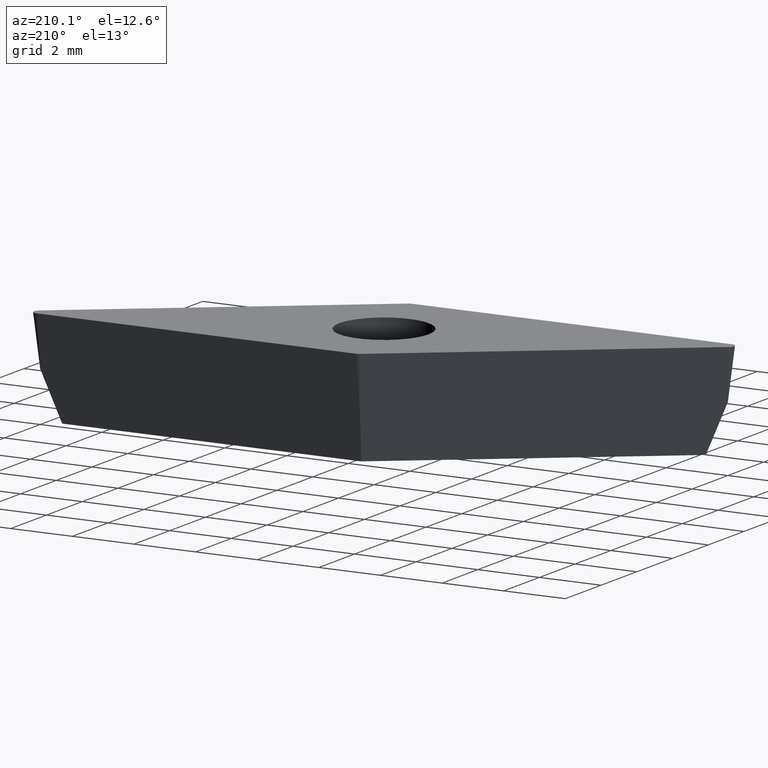
[diagram: clean part render]
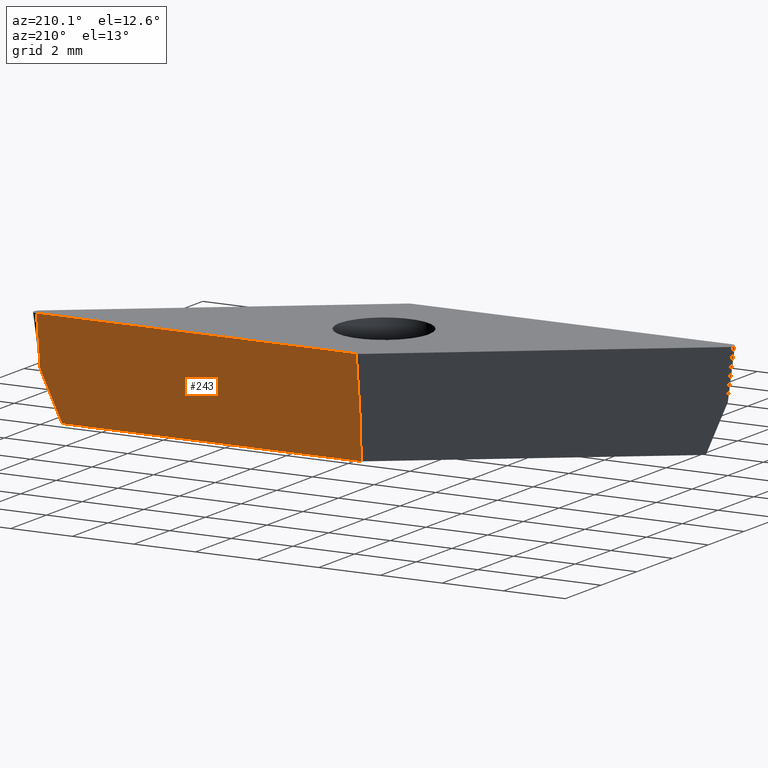
[diagram: same view with one face highlighted and labeled with its STEP entity id]
A machine part, auxiliary view. The second image highlights one B-rep face of the part: STEP entity #243.
In plain terms, the highlighted face is a freeform B-spline surface patch.
Its self-contained STEP definition (entity closure, byte-faithful):
#16 = VECTOR ( 'NONE', #420, 1000.000000000000000 ) ;
#27 = VERTEX_POINT ( 'NONE', #340 ) ;
#43 = CARTESIAN_POINT ( 'NONE',  ( -0.9380138969149687300, 2.974999999999994300, -1.628869285594952500 ) ) ;
#44 = CARTESIAN_POINT ( 'NONE',  ( -0.9179971634271118000, 2.911515032109584000, -2.145912857063301700 ) ) ;
#45 = EDGE_CURVE ( 'NONE', #257, #53, #403, .T. ) ;
#50 = DIRECTION ( 'NONE',  ( 2.864399321849623000E-017, -0.1218693434051477400, -0.9925461516413219800 ) ) ;
#51 = ORIENTED_EDGE ( 'NONE', *, *, #45, .T. ) ;
#53 = VERTEX_POINT ( 'NONE', #190 ) ;
#55 = CARTESIAN_POINT ( 'NONE',  ( 9.435494537030640700, 3.175000000000002500, 0.0000000000000000000 ) ) ;
#57 = ORIENTED_EDGE ( 'NONE', *, *, #438, .T. ) ;
#58 = ORIENTED_EDGE ( 'NONE', *, *, #124, .T. ) ;
#60 = ORIENTED_EDGE ( 'NONE', *, *, #107, .F. ) ;
#61 = CARTESIAN_POINT ( 'NONE',  ( -0.8979804299392549800, 2.848030064219173200, -2.662956428531650500 ) ) ;
#62 = ORIENTED_EDGE ( 'NONE', *, *, #439, .T. ) ;
#68 = CARTESIAN_POINT ( 'NONE',  ( -0.8779636964513973800, 2.784545096328761900, -3.180000000000000200 ) ) ;
#69 = ORIENTED_EDGE ( 'NONE', *, *, #423, .F. ) ;
#72 = CARTESIAN_POINT ( 'NONE',  ( 9.032797348652094300, 2.848030064219322400, -2.662956428530456800 ) ) ;
#75 = CARTESIAN_POINT ( 'NONE',  ( 9.435494537030640700, 2.975000000000666200, -1.628869285589508800 ) ) ;
#91 = CARTESIAN_POINT ( 'NONE',  ( 9.234145942840971300, 2.911515032109031500, -2.145912857060378300 ) ) ;
#101 = LINE ( 'NONE', #329, #16 ) ;
#103 = CARTESIAN_POINT ( 'NONE',  ( 9.435494537030640700, 2.975000000000666200, -1.628869285589508800 ) ) ;
#107 = EDGE_CURVE ( 'NONE', #27, #368, #178, .T. ) ;
#120 = VERTEX_POINT ( 'NONE', #334 ) ;
#124 = EDGE_CURVE ( 'NONE', #120, #368, #101, .T. ) ;
#133 = CARTESIAN_POINT ( 'NONE',  ( 5.977658392382111600, 2.706454115594517400, -3.815999999999999800 ) ) ;
#139 = CARTESIAN_POINT ( 'NONE',  ( 8.831448754462112300, 2.784545096328765900, -3.180000000000000200 ) ) ;
#156 = CARTESIAN_POINT ( 'NONE',  ( 2.358507120519768700, 2.784545096328761500, -3.180000000000000600 ) ) ;
#160 = CARTESIAN_POINT ( 'NONE',  ( 8.831448754462112300, 2.784545096328765900, -3.180000000000000200 ) ) ;
#178 = LINE ( 'NONE', #187, #184 ) ;
#184 = VECTOR ( 'NONE', #377, 1000.000000000000000 ) ;
#187 = CARTESIAN_POINT ( 'NONE',  ( -1.001073654690764100, 3.174999999999999800, 0.0000000000000000000 ) ) ;
#190 = CARTESIAN_POINT ( 'NONE',  ( -0.8779636964513973800, 2.784545096328761900, -3.180000000000000200 ) ) ;
#239 = VECTOR ( 'NONE', #50, 1000.000000000000000 ) ;
#243 = ADVANCED_FACE ( 'NONE', ( #320 ), #321, .T. ) ;
#248 = CARTESIAN_POINT ( 'NONE',  ( 5.594977937490945400, 2.784545096328763700, -3.180000000000000600 ) ) ;
#249 = CARTESIAN_POINT ( 'NONE',  ( 2.519822247733566100, 3.174999999999999800, 0.0000000000000000000 ) ) ;
#250 = CARTESIAN_POINT ( 'NONE',  ( -0.9380138969149677300, 3.174999999999999800, 0.0000000000000000000 ) ) ;
#252 = CARTESIAN_POINT ( 'NONE',  ( 9.435494537030640700, 2.706454115594517400, -3.815999999999999800 ) ) ;
#257 = VERTEX_POINT ( 'NONE', #364 ) ;
#268 = CARTESIAN_POINT ( 'NONE',  ( 9.435494537030640700, 3.175000000000002500, 0.0000000000000000000 ) ) ;
#274 = CARTESIAN_POINT ( 'NONE',  ( -0.9380138969149678400, 3.174999999999999800, 0.0000000000000000000 ) ) ;
#280 = CARTESIAN_POINT ( 'NONE',  ( 5.977658392382111600, 3.175000000000002500, 0.0000000000000000000 ) ) ;
#286 = EDGE_LOOP ( 'NONE', ( #51, #57, #58, #60, #62, #69 ) ) ;
#300 = VERTEX_POINT ( 'NONE', #75 ) ;
#307 = B_SPLINE_CURVE_WITH_KNOTS ( 'NONE', 3,
 ( #160, #72, #91, #103 ),
 .UNSPECIFIED., .F., .F.,
 ( 4, 4 ),
 ( 8.673617379884035500E-019, 0.001675455421955207700 ),
 .UNSPECIFIED. ) ;
#320 = FACE_OUTER_BOUND ( 'NONE', #286, .T. ) ;
#321 = B_SPLINE_SURFACE_WITH_KNOTS ( 'NONE', 1, 3, ( 
 ( #268, #280, #249, #250 ),
 ( #252, #133, #333, #332 ) ),
 .UNSPECIFIED., .F., .F., .F.,
 ( 2, 2 ),
 ( 4, 4 ),
 ( 0.0000000000000000000, 1.000000000000000000 ),
 ( -0.01043656819172140600, -6.305975777579628800E-005 ),
 .UNSPECIFIED. ) ;
#329 = CARTESIAN_POINT ( 'NONE',  ( -0.9380138969149677300, 3.174999999999999800, 0.0000000000000000000 ) ) ;
#332 = CARTESIAN_POINT ( 'NONE',  ( -0.9380138969149676200, 2.706454115594514800, -3.815999999999999800 ) ) ;
#333 = CARTESIAN_POINT ( 'NONE',  ( 2.519822247733566100, 2.706454115594514800, -3.815999999999999800 ) ) ;
#334 = CARTESIAN_POINT ( 'NONE',  ( -0.9380138969149687300, 2.974999999999994300, -1.628869285594952500 ) ) ;
#340 = CARTESIAN_POINT ( 'NONE',  ( 9.435494537030640700, 3.175000000000002500, 0.0000000000000000000 ) ) ;
#342 = CARTESIAN_POINT ( 'NONE',  ( -0.8779636964513973800, 2.784545096328761900, -3.180000000000000200 ) ) ;
#364 = CARTESIAN_POINT ( 'NONE',  ( 8.831448754462112300, 2.784545096328765900, -3.180000000000000200 ) ) ;
#368 = VERTEX_POINT ( 'NONE', #274 ) ;
#377 = DIRECTION ( 'NONE',  ( -1.000000000000000000, -2.350385455288036700E-016, -0.0000000000000000000 ) ) ;
#403 = B_SPLINE_CURVE_WITH_KNOTS ( 'NONE', 3,
 ( #139, #248, #156, #342 ),
 .UNSPECIFIED., .F., .F.,
 ( 4, 4 ),
 ( 0.0000000000000000000, 0.009709412450913508500 ),
 .UNSPECIFIED. ) ;
#420 = DIRECTION ( 'NONE',  ( -2.864399321849623000E-017, 0.1218693434051477400, 0.9925461516413219800 ) ) ;
#423 = EDGE_CURVE ( 'NONE', #257, #300, #307, .T. ) ;
#427 = B_SPLINE_CURVE_WITH_KNOTS ( 'NONE', 3,
 ( #68, #61, #44, #43 ),
 .UNSPECIFIED., .F., .F.,
 ( 4, 4 ),
 ( 0.0000000000000000000, 0.001563932731954557600 ),
 .UNSPECIFIED. ) ;
#438 = EDGE_CURVE ( 'NONE', #53, #120, #427, .T. ) ;
#439 = EDGE_CURVE ( 'NONE', #27, #300, #452, .T. ) ;
#452 = LINE ( 'NONE', #55, #239 ) ;